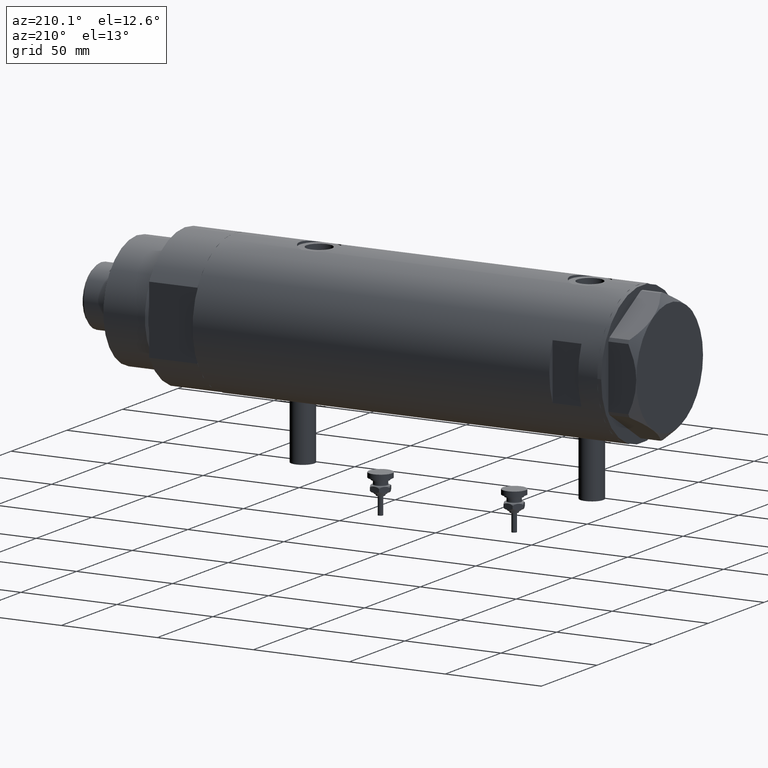
[diagram: clean part render]
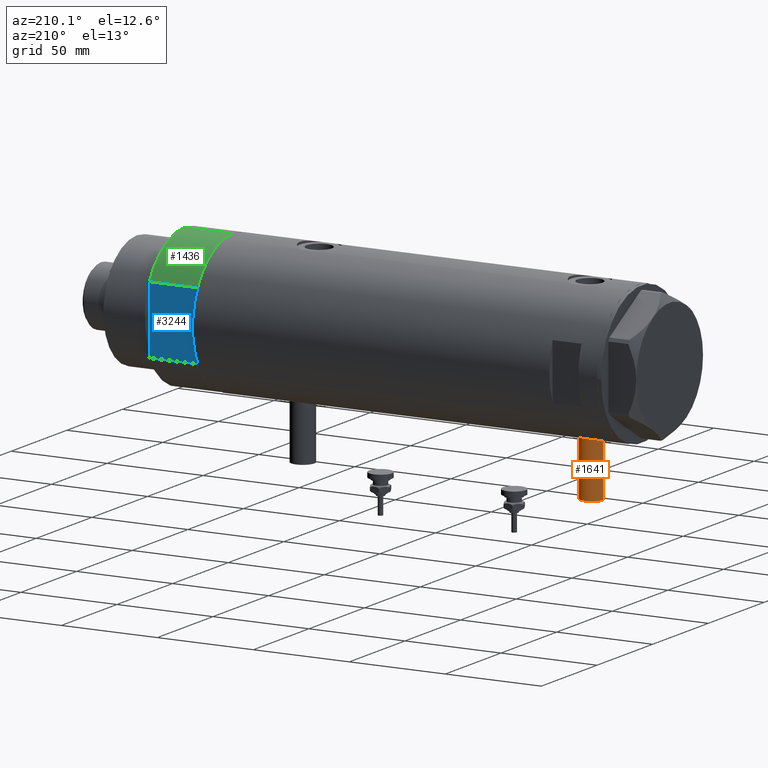
[diagram: same view with three faces highlighted in distinct colors, each labeled with its STEP entity id]
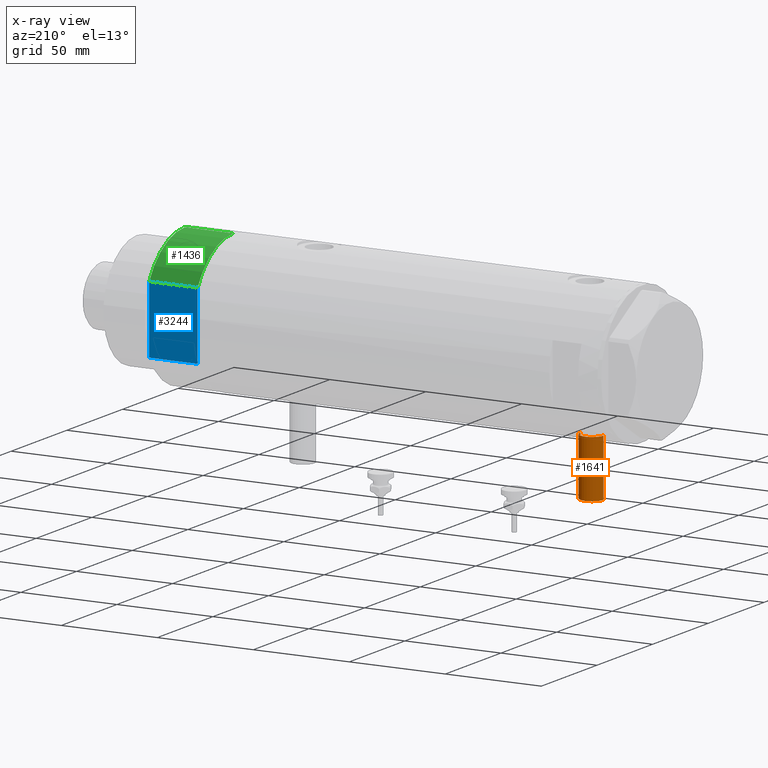
[diagram: x-ray of the same camera — body ghosted, the three highlighted faces saturated]
A machine part, auxiliary view with three faces highlighted in distinct colors.
The next image is the same camera in x-ray (body ghosted, the three faces saturated) — at least one of them is partly hidden behind the body in this view.
Their STEP definitions:

[orange] entity #1641 — the highlighted cylindrical surface (edge-blend (fillet) strip) has radius 6 mm, axis along (0, 0, 1).
#133 = CARTESIAN_POINT ( 'NONE',  ( -65.00000000000000000, 7.347880794884101001E-16, 87.39999999999999147 ) ) ;
#292 = ORIENTED_EDGE ( 'NONE', *, *, #4490, .T. ) ;
#356 = VECTOR ( 'NONE', #5578, 1000.000000000000000 ) ;
#624 = EDGE_CURVE ( 'NONE', #3920, #3160, #5181, .T. ) ;
#625 = CARTESIAN_POINT ( 'NONE',  ( -65.00000000000000000, 0.000000000000000000, 81.40000000000000568 ) ) ;
#720 = VERTEX_POINT ( 'NONE', #3134 ) ;
#1100 = FACE_OUTER_BOUND ( 'NONE', #1228, .T. ) ;
#1228 = EDGE_LOOP ( 'NONE', ( #3460, #292, #1682, #1876 ) ) ;
#1408 = DIRECTION ( 'NONE',  ( 0.000000000000000000, 0.000000000000000000, 1.000000000000000000 ) ) ;
#1641 = ADVANCED_FACE ( 'NONE', ( #1100 ), #4728, .T. ) ;
#1682 = ORIENTED_EDGE ( 'NONE', *, *, #3725, .T. ) ;
#1760 = CIRCLE ( 'NONE', #3121, 5.999999999999991118 ) ;
#1876 = ORIENTED_EDGE ( 'NONE', *, *, #624, .F. ) ;
#2206 = LINE ( 'NONE', #4459, #5524 ) ;
#2331 = CARTESIAN_POINT ( 'NONE',  ( -35.29999999999999716, 0.000000000000000000, 81.40000000000000568 ) ) ;
#2597 = CARTESIAN_POINT ( 'NONE',  ( -35.29999999999999716, 0.000000000000000000, 75.40000000000000568 ) ) ;
#2716 = DIRECTION ( 'NONE',  ( -1.000000000000000000, 0.000000000000000000, 0.000000000000000000 ) ) ;
#2803 = VERTEX_POINT ( 'NONE', #133 ) ;
#3121 = AXIS2_PLACEMENT_3D ( 'NONE', #3222, #5566, #1408 ) ;
#3134 = CARTESIAN_POINT ( 'NONE',  ( -35.29999999999999716, 7.347880794884101001E-16, 87.39999999999999147 ) ) ;
#3160 = VERTEX_POINT ( 'NONE', #2597 ) ;
#3222 = CARTESIAN_POINT ( 'NONE',  ( -65.00000000000000000, 0.000000000000000000, 81.40000000000000568 ) ) ;
#3460 = ORIENTED_EDGE ( 'NONE', *, *, #3691, .F. ) ;
#3691 = EDGE_CURVE ( 'NONE', #2803, #3920, #1760, .T. ) ;
#3725 = EDGE_CURVE ( 'NONE', #720, #3160, #5791, .T. ) ;
#3920 = VERTEX_POINT ( 'NONE', #5800 ) ;
#4031 = DIRECTION ( 'NONE',  ( 1.000000000000000000, -0.000000000000000000, -0.000000000000000000 ) ) ;
#4284 = DIRECTION ( 'NONE',  ( 1.000000000000000000, -0.000000000000000000, -0.000000000000000000 ) ) ;
#4459 = CARTESIAN_POINT ( 'NONE',  ( -65.00000000000000000, 7.347880794884104945E-16, 87.39999999999999147 ) ) ;
#4490 = EDGE_CURVE ( 'NONE', #2803, #720, #2206, .T. ) ;
#4728 = CYLINDRICAL_SURFACE ( 'NONE', #5883, 5.999999999999991118 ) ;
#4759 = DIRECTION ( 'NONE',  ( 0.000000000000000000, 0.000000000000000000, -1.000000000000000000 ) ) ;
#5138 = DIRECTION ( 'NONE',  ( 0.000000000000000000, 0.000000000000000000, 1.000000000000000000 ) ) ;
#5181 = LINE ( 'NONE', #5605, #356 ) ;
#5524 = VECTOR ( 'NONE', #4031, 1000.000000000000000 ) ;
#5566 = DIRECTION ( 'NONE',  ( -1.000000000000000000, 0.000000000000000000, 0.000000000000000000 ) ) ;
#5578 = DIRECTION ( 'NONE',  ( 1.000000000000000000, -0.000000000000000000, -0.000000000000000000 ) ) ;
#5605 = CARTESIAN_POINT ( 'NONE',  ( -65.00000000000000000, 0.000000000000000000, 75.40000000000000568 ) ) ;
#5791 = CIRCLE ( 'NONE', #5901, 5.999999999999991118 ) ;
#5800 = CARTESIAN_POINT ( 'NONE',  ( -65.00000000000000000, 0.000000000000000000, 75.40000000000000568 ) ) ;
#5883 = AXIS2_PLACEMENT_3D ( 'NONE', #625, #4284, #4759 ) ;
#5901 = AXIS2_PLACEMENT_3D ( 'NONE', #2331, #2716, #5138 ) ;

[blue] entity #3244 — the highlighted planar face has unit normal (0, -1, -0).
#116 = ORIENTED_EDGE ( 'NONE', *, *, #5178, .F. ) ;
#215 = DIRECTION ( 'NONE',  ( -0.000000000000000000, -0.000000000000000000, 1.000000000000000000 ) ) ;
#245 = VECTOR ( 'NONE', #215, 1000.000000000000000 ) ;
#381 = LINE ( 'NONE', #5828, #2121 ) ;
#423 = ORIENTED_EDGE ( 'NONE', *, *, #3131, .F. ) ;
#482 = LINE ( 'NONE', #2795, #3415 ) ;
#542 = CARTESIAN_POINT ( 'NONE',  ( -17.55704986607943141, 32.00000000000000000, 25.19999999999999929 ) ) ;
#548 = DIRECTION ( 'NONE',  ( 1.000000000000000000, 0.000000000000000000, 0.000000000000000000 ) ) ;
#758 = ORIENTED_EDGE ( 'NONE', *, *, #5497, .F. ) ;
#772 = DIRECTION ( 'NONE',  ( 1.000000000000000000, 0.000000000000000000, 0.000000000000000000 ) ) ;
#804 = CARTESIAN_POINT ( 'NONE',  ( -17.55704986607943141, 32.00000000000000000, 0.000000000000000000 ) ) ;
#832 = ORIENTED_EDGE ( 'NONE', *, *, #2139, .T. ) ;
#858 = CARTESIAN_POINT ( 'NONE',  ( -17.55704986607943141, 32.00000000000000000, 0.000000000000000000 ) ) ;
#871 = DIRECTION ( 'NONE',  ( 0.000000000000000000, -1.000000000000000000, 0.000000000000000000 ) ) ;
#1196 = EDGE_LOOP ( 'NONE', ( #832, #758, #423, #116, #3034 ) ) ;
#1319 = DIRECTION ( 'NONE',  ( 0.000000000000000000, -0.000000000000000000, -1.000000000000000000 ) ) ;
#1658 = AXIS2_PLACEMENT_3D ( 'NONE', #804, #871, #1319 ) ;
#1696 = CARTESIAN_POINT ( 'NONE',  ( 17.55704986607943496, 32.00000000000000000, 0.000000000000000000 ) ) ;
#1799 = FACE_OUTER_BOUND ( 'NONE', #1196, .T. ) ;
#1813 = VERTEX_POINT ( 'NONE', #1696 ) ;
#2095 = EDGE_CURVE ( 'NONE', #2320, #3540, #381, .T. ) ;
#2121 = VECTOR ( 'NONE', #5858, 1000.000000000000000 ) ;
#2139 = EDGE_CURVE ( 'NONE', #3540, #3643, #5537, .T. ) ;
#2320 = VERTEX_POINT ( 'NONE', #858 ) ;
#2722 = DIRECTION ( 'NONE',  ( 1.000000000000000000, 0.000000000000000000, 0.000000000000000000 ) ) ;
#2795 = CARTESIAN_POINT ( 'NONE',  ( -17.55704986607943141, 32.00000000000000000, 0.000000000000000000 ) ) ;
#2943 = CARTESIAN_POINT ( 'NONE',  ( 17.55704986607943496, 32.00000000000000000, 25.19999999999999929 ) ) ;
#3034 = ORIENTED_EDGE ( 'NONE', *, *, #2095, .T. ) ;
#3073 = CARTESIAN_POINT ( 'NONE',  ( -17.55704986607943141, 32.00000000000000000, 0.000000000000000000 ) ) ;
#3131 = EDGE_CURVE ( 'NONE', #4465, #1813, #5795, .T. ) ;
#3244 = ADVANCED_FACE ( 'NONE', ( #1799 ), #5409, .F. ) ;
#3415 = VECTOR ( 'NONE', #548, 1000.000000000000000 ) ;
#3452 = CARTESIAN_POINT ( 'NONE',  ( 0.000000000000000000, 32.00000000000000000, 0.000000000000000000 ) ) ;
#3487 = LINE ( 'NONE', #4806, #245 ) ;
#3540 = VERTEX_POINT ( 'NONE', #5176 ) ;
#3569 = VECTOR ( 'NONE', #772, 1000.000000000000000 ) ;
#3643 = VERTEX_POINT ( 'NONE', #2943 ) ;
#4236 = VECTOR ( 'NONE', #2722, 1000.000000000000000 ) ;
#4465 = VERTEX_POINT ( 'NONE', #3452 ) ;
#4806 = CARTESIAN_POINT ( 'NONE',  ( 17.55704986607943141, 32.00000000000000000, 0.000000000000000000 ) ) ;
#5176 = CARTESIAN_POINT ( 'NONE',  ( -17.55704986607943496, 32.00000000000000000, 25.19999999999999929 ) ) ;
#5178 = EDGE_CURVE ( 'NONE', #2320, #4465, #482, .T. ) ;
#5409 = PLANE ( 'NONE',  #1658 ) ;
#5497 = EDGE_CURVE ( 'NONE', #1813, #3643, #3487, .T. ) ;
#5537 = LINE ( 'NONE', #542, #4236 ) ;
#5795 = LINE ( 'NONE', #3073, #3569 ) ;
#5828 = CARTESIAN_POINT ( 'NONE',  ( -17.55704986607943141, 32.00000000000000000, 0.000000000000000000 ) ) ;
#5858 = DIRECTION ( 'NONE',  ( -0.000000000000000000, -0.000000000000000000, 1.000000000000000000 ) ) ;

[green] entity #1436 — the highlighted cylindrical surface (partial cylindrical patch) has radius 36.5 mm, axis along (-1, -0, 0).
#334 = CARTESIAN_POINT ( 'NONE',  ( 0.000000000000000000, 0.000000000000000000, 25.19999999999999929 ) ) ;
#381 = LINE ( 'NONE', #5828, #2121 ) ;
#390 = DIRECTION ( 'NONE',  ( -1.000000000000000000, 0.000000000000000000, 0.000000000000000000 ) ) ;
#858 = CARTESIAN_POINT ( 'NONE',  ( -17.55704986607943141, 32.00000000000000000, 0.000000000000000000 ) ) ;
#966 = FACE_OUTER_BOUND ( 'NONE', #4258, .T. ) ;
#994 = CARTESIAN_POINT ( 'NONE',  ( 0.000000000000000000, 0.000000000000000000, 25.19999999999999929 ) ) ;
#1061 = CARTESIAN_POINT ( 'NONE',  ( 0.000000000000000000, 0.000000000000000000, 0.000000000000000000 ) ) ;
#1436 = ADVANCED_FACE ( 'NONE', ( #966 ), #1450, .T. ) ;
#1450 = CYLINDRICAL_SURFACE ( 'NONE', #5175, 36.50000000000000000 ) ;
#1479 = ORIENTED_EDGE ( 'NONE', *, *, #2036, .F. ) ;
#1532 = CARTESIAN_POINT ( 'NONE',  ( -36.50000000000000000, 0.000000000000000000, 25.19999999999999929 ) ) ;
#1554 = CARTESIAN_POINT ( 'NONE',  ( -36.50000000000000000, 0.000000000000000000, 25.19999999999999929 ) ) ;
#1673 = ORIENTED_EDGE ( 'NONE', *, *, #4755, .F. ) ;
#1743 = AXIS2_PLACEMENT_3D ( 'NONE', #334, #4226, #4770 ) ;
#1837 = DIRECTION ( 'NONE',  ( 0.000000000000000000, 0.000000000000000000, 1.000000000000000000 ) ) ;
#1868 = DIRECTION ( 'NONE',  ( 1.000000000000000000, 0.000000000000000000, 0.000000000000000000 ) ) ;
#2036 = EDGE_CURVE ( 'NONE', #3540, #3747, #5603, .T. ) ;
#2095 = EDGE_CURVE ( 'NONE', #2320, #3540, #381, .T. ) ;
#2121 = VECTOR ( 'NONE', #5858, 1000.000000000000000 ) ;
#2142 = VECTOR ( 'NONE', #4245, 1000.000000000000000 ) ;
#2320 = VERTEX_POINT ( 'NONE', #858 ) ;
#2826 = DIRECTION ( 'NONE',  ( -0.000000000000000000, -0.000000000000000000, -1.000000000000000000 ) ) ;
#3079 = ORIENTED_EDGE ( 'NONE', *, *, #5474, .T. ) ;
#3229 = LINE ( 'NONE', #1532, #2142 ) ;
#3540 = VERTEX_POINT ( 'NONE', #5176 ) ;
#3747 = VERTEX_POINT ( 'NONE', #1554 ) ;
#3877 = CIRCLE ( 'NONE', #5914, 36.50000000000000000 ) ;
#4226 = DIRECTION ( 'NONE',  ( 0.000000000000000000, 0.000000000000000000, 1.000000000000000000 ) ) ;
#4245 = DIRECTION ( 'NONE',  ( -0.000000000000000000, -0.000000000000000000, -1.000000000000000000 ) ) ;
#4258 = EDGE_LOOP ( 'NONE', ( #1673, #1479, #5115, #3079 ) ) ;
#4755 = EDGE_CURVE ( 'NONE', #3747, #5613, #3229, .T. ) ;
#4770 = DIRECTION ( 'NONE',  ( 1.000000000000000000, 0.000000000000000000, 0.000000000000000000 ) ) ;
#4788 = CARTESIAN_POINT ( 'NONE',  ( -36.50000000000000000, 0.000000000000000000, 0.000000000000000000 ) ) ;
#5115 = ORIENTED_EDGE ( 'NONE', *, *, #2095, .F. ) ;
#5175 = AXIS2_PLACEMENT_3D ( 'NONE', #994, #2826, #390 ) ;
#5176 = CARTESIAN_POINT ( 'NONE',  ( -17.55704986607943496, 32.00000000000000000, 25.19999999999999929 ) ) ;
#5474 = EDGE_CURVE ( 'NONE', #2320, #5613, #3877, .T. ) ;
#5603 = CIRCLE ( 'NONE', #1743, 36.50000000000000000 ) ;
#5613 = VERTEX_POINT ( 'NONE', #4788 ) ;
#5828 = CARTESIAN_POINT ( 'NONE',  ( -17.55704986607943141, 32.00000000000000000, 0.000000000000000000 ) ) ;
#5858 = DIRECTION ( 'NONE',  ( -0.000000000000000000, -0.000000000000000000, 1.000000000000000000 ) ) ;
#5914 = AXIS2_PLACEMENT_3D ( 'NONE', #1061, #1837, #1868 ) ;